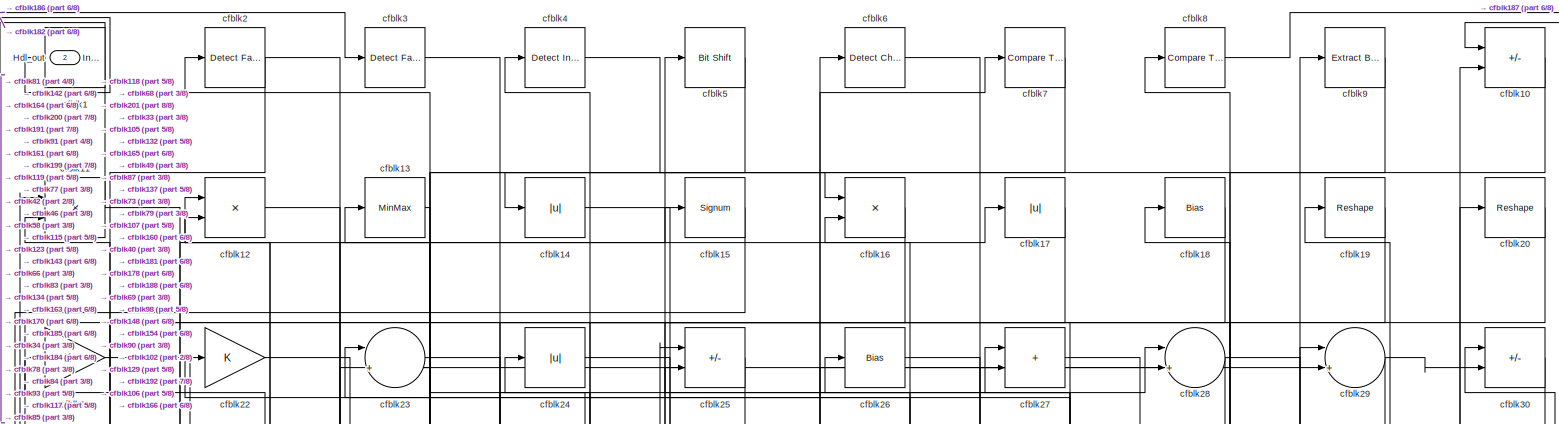
[diagram: root canvas - part 1/8, full width, top band]
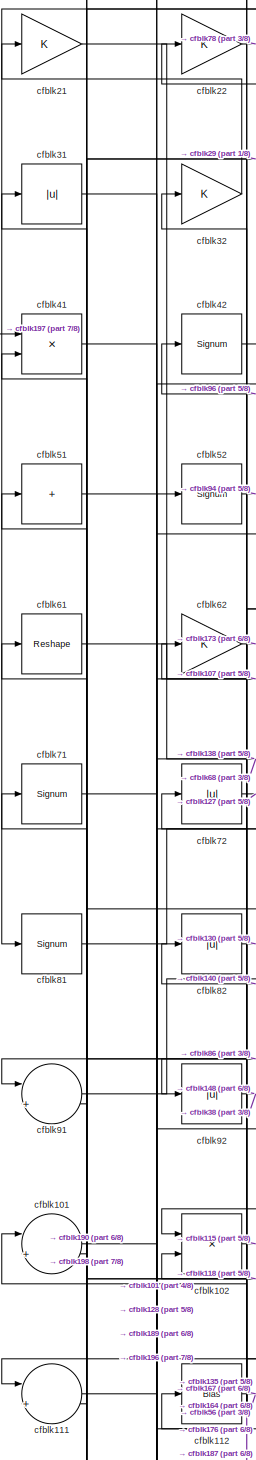
[diagram: root canvas - part 2/8, middle left region]
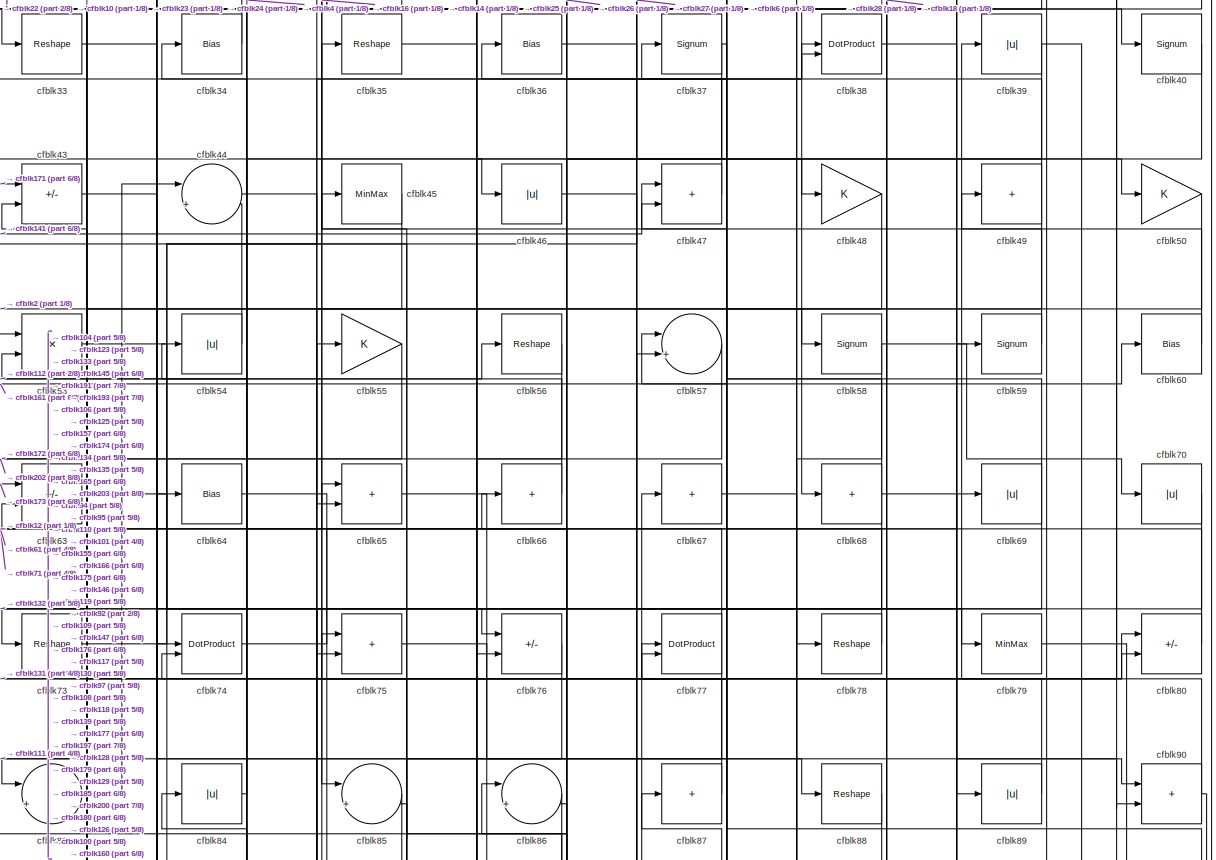
[diagram: root canvas - part 3/8, full width, top band]
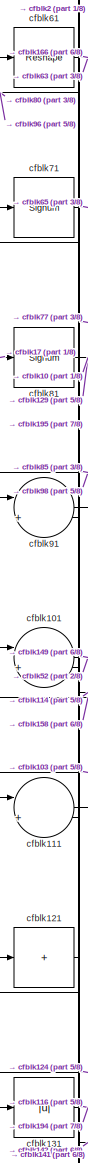
[diagram: root canvas - part 4/8, middle left region]
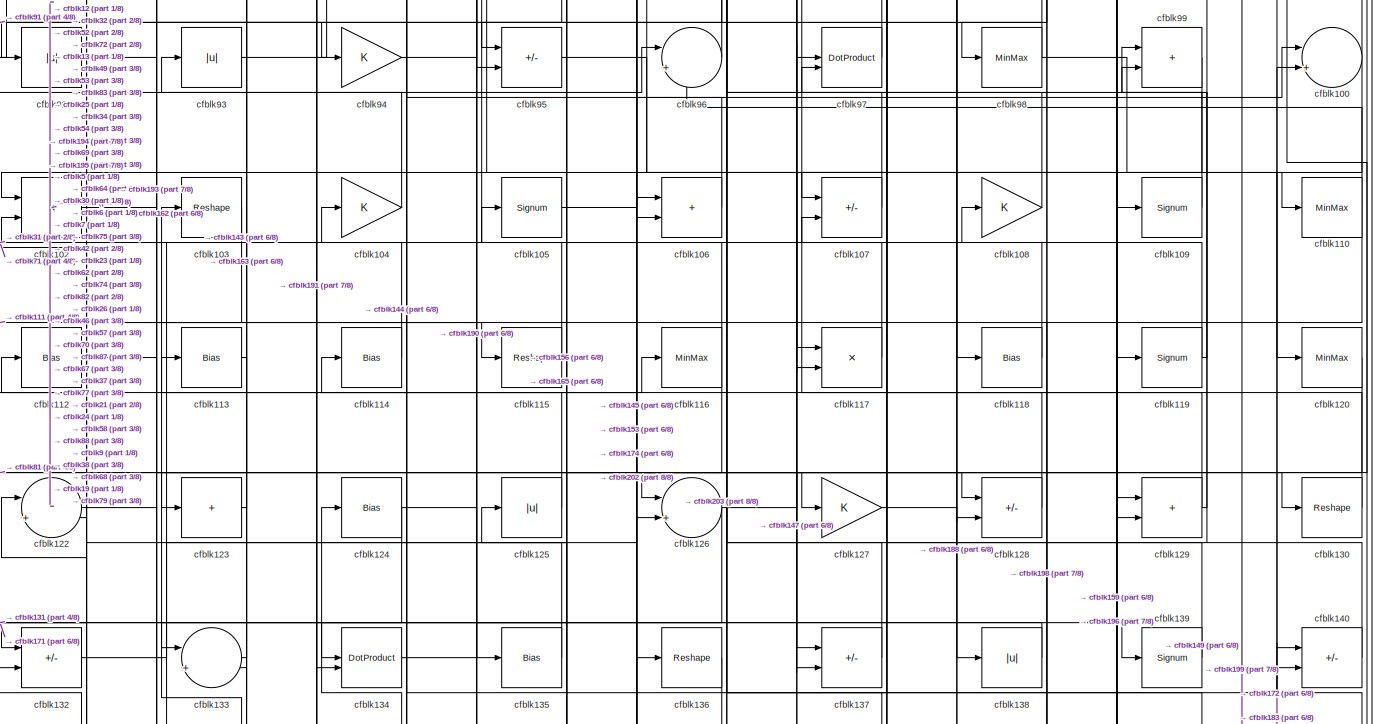
[diagram: root canvas - part 5/8, full width, middle band]
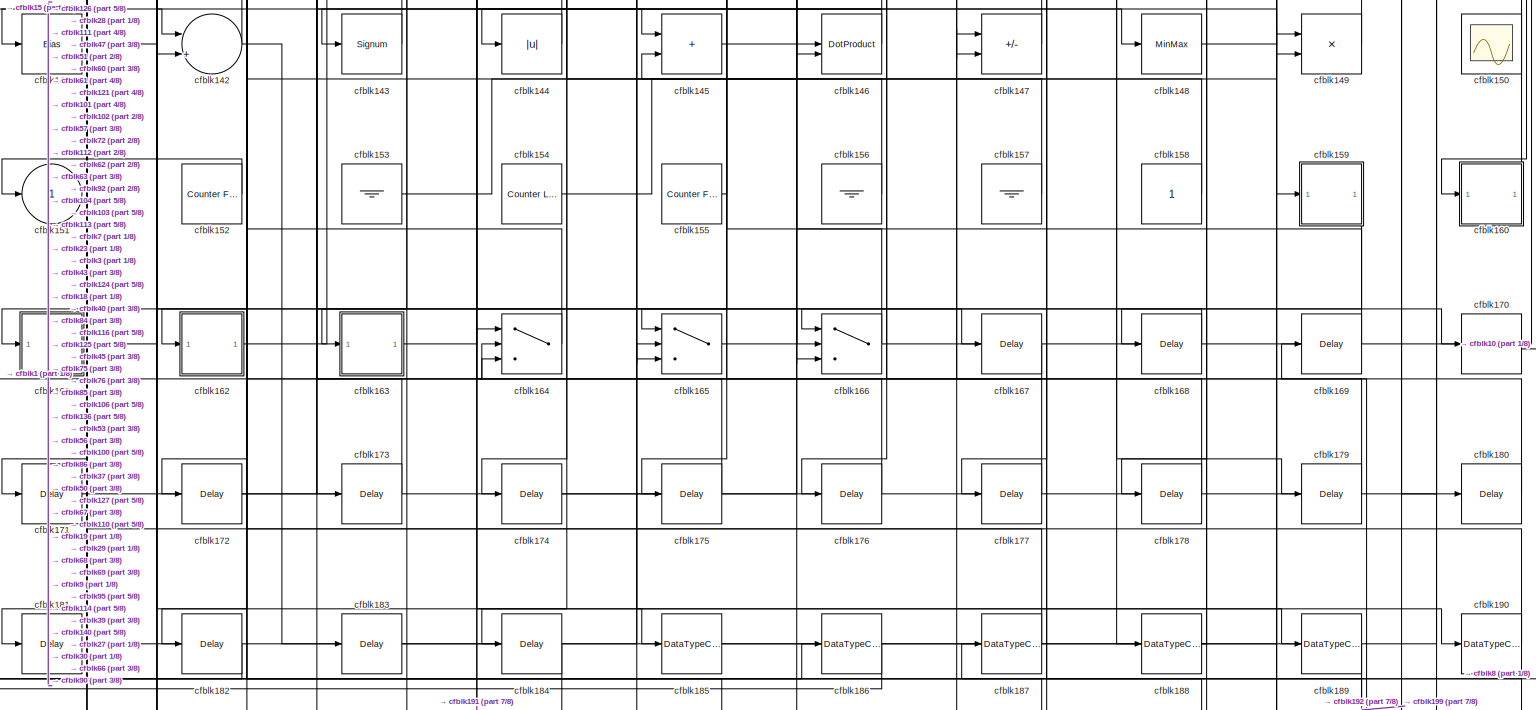
[diagram: root canvas - part 6/8, full width, bottom band]
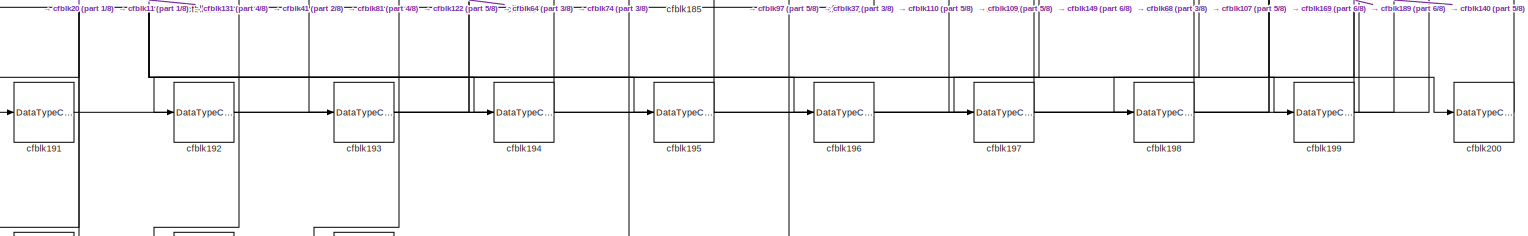
[diagram: root canvas - part 7/8, full width, bottom band]
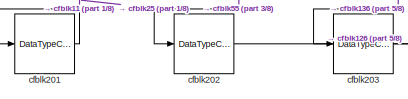
[diagram: root canvas - part 8/8, bottom left region]
MODEL slx_2e7a04397495
KIND model
CONFIG AbsTol = auto
CONFIG EnableMultiTasking = off
CONFIG FixedStep = auto
CONFIG MaxStep = auto
CONFIG MinStep = auto
CONFIG RelTol = 1e-3
CONFIG SampleTimeConstraint = Unconstrained
CONFIG SolverName = VariableStepAuto
CONFIG StartTime = 0.0
CONFIG StopTime = 10.0
BLOCK [Outport] Hdl_out
  OutDataTypeStr = uint8
  Port = 2
BLOCK [Reference] cfblk1  REF=simulink/Logic and Bit
Operations/Detect
Increase
  LibrarySourceBlock = hdlsllib/Logic and Bit\nOperations/Detect\nIncrease
  SourceBlock = simulink/Logic and Bit\nOperations/Detect\nIncrease
  SourceType = Detect Increase
BLOCK [Sum] cfblk10
  IconShape = rectangular
  Inputs = +-
  OutDataTypeStr = uint8
BLOCK [Sum] cfblk100
  Inputs = |++
  OutDataTypeStr = uint8
BLOCK [Sum] cfblk101
  Inputs = |++
  OutDataTypeStr = uint8
BLOCK [Product] cfblk102
  Inputs = */
  OutDataTypeStr = uint8
  RndMeth = Zero
  SaturateOnIntegerOverflow = on
BLOCK [Reshape] cfblk103
BLOCK [Gain] cfblk104
  OutDataTypeStr = uint8
BLOCK [Signum] cfblk105
BLOCK [Sum] cfblk106
  IconShape = rectangular
  OutDataTypeStr = uint8
BLOCK [Sum] cfblk107
  IconShape = rectangular
  Inputs = +-
  OutDataTypeStr = uint8
BLOCK [Gain] cfblk108
  OutDataTypeStr = uint8
BLOCK [Signum] cfblk109
BLOCK [Product] cfblk11
  Inputs = */
  OutDataTypeStr = uint8
  RndMeth = Zero
  SaturateOnIntegerOverflow = on
BLOCK [MinMax] cfblk110
  OutDataTypeStr = uint8
BLOCK [Sum] cfblk111
  Inputs = |++
  OutDataTypeStr = uint8
BLOCK [Bias] cfblk112
  Bias = 0.0
  SaturateOnIntegerOverflow = off
BLOCK [Bias] cfblk113
  Bias = 0.0
  SaturateOnIntegerOverflow = off
BLOCK [Bias] cfblk114
  Bias = 0.0
  SaturateOnIntegerOverflow = off
BLOCK [Reshape] cfblk115
BLOCK [MinMax] cfblk116
  OutDataTypeStr = uint8
BLOCK [Product] cfblk117
  Inputs = */
  OutDataTypeStr = uint8
  RndMeth = Zero
  SaturateOnIntegerOverflow = on
BLOCK [Bias] cfblk118
  Bias = 0.0
  SaturateOnIntegerOverflow = off
BLOCK [Signum] cfblk119
BLOCK [Product] cfblk12
  Inputs = */
  OutDataTypeStr = uint8
  RndMeth = Zero
  SaturateOnIntegerOverflow = on
BLOCK [MinMax] cfblk120
  OutDataTypeStr = uint8
BLOCK [Sum] cfblk121
  IconShape = rectangular
  Inputs = +
  OutDataTypeStr = uint8
BLOCK [Sum] cfblk122
  Inputs = |++
  OutDataTypeStr = uint8
BLOCK [Sum] cfblk123
  IconShape = rectangular
  Inputs = +
  OutDataTypeStr = uint8
BLOCK [Bias] cfblk124
  Bias = 0.0
  SaturateOnIntegerOverflow = off
BLOCK [Abs] cfblk125
  OutDataTypeStr = uint8
  SaturateOnIntegerOverflow = off
BLOCK [Sum] cfblk126
  Inputs = |++
  OutDataTypeStr = uint8
BLOCK [Gain] cfblk127
  OutDataTypeStr = uint8
BLOCK [Sum] cfblk128
  IconShape = rectangular
  Inputs = +-
  OutDataTypeStr = uint8
BLOCK [Sum] cfblk129
  IconShape = rectangular
  OutDataTypeStr = uint8
BLOCK [MinMax] cfblk13
  OutDataTypeStr = uint8
BLOCK [Reshape] cfblk130
BLOCK [Abs] cfblk131
  OutDataTypeStr = uint8
  SaturateOnIntegerOverflow = off
BLOCK [Sum] cfblk132
  IconShape = rectangular
  Inputs = +-
  OutDataTypeStr = uint8
BLOCK [Sum] cfblk133
  Inputs = |++
  OutDataTypeStr = uint8
BLOCK [DotProduct] cfblk134
  OutDataTypeStr = uint8
BLOCK [Bias] cfblk135
  Bias = 0.0
  SaturateOnIntegerOverflow = off
BLOCK [Reshape] cfblk136
BLOCK [Sum] cfblk137
  IconShape = rectangular
  Inputs = +-
  OutDataTypeStr = uint8
BLOCK [Abs] cfblk138
  OutDataTypeStr = uint8
  SaturateOnIntegerOverflow = off
BLOCK [Signum] cfblk139
BLOCK [Abs] cfblk14
  OutDataTypeStr = uint8
  SaturateOnIntegerOverflow = off
BLOCK [Sum] cfblk140
  IconShape = rectangular
  Inputs = +-
  OutDataTypeStr = uint8
BLOCK [Bias] cfblk141
  Bias = 0.0
  SaturateOnIntegerOverflow = off
BLOCK [Sum] cfblk142
  Inputs = |++
  OutDataTypeStr = uint8
BLOCK [Signum] cfblk143
BLOCK [Abs] cfblk144
  OutDataTypeStr = uint8
  SaturateOnIntegerOverflow = off
BLOCK [Sum] cfblk145
  IconShape = rectangular
  OutDataTypeStr = uint8
BLOCK [DotProduct] cfblk146
  OutDataTypeStr = uint8
BLOCK [Sum] cfblk147
  IconShape = rectangular
  Inputs = +-
  OutDataTypeStr = uint8
BLOCK [MinMax] cfblk148
  OutDataTypeStr = uint8
BLOCK [Product] cfblk149
  Inputs = */
  OutDataTypeStr = uint8
  RndMeth = Zero
  SaturateOnIntegerOverflow = on
BLOCK [Signum] cfblk15
BLOCK [Scope] cfblk150
  Floating = on
  NumInputPorts = 1
  ScopeSpecificationString = Simulink.scopes.TimeScopeBlockCfg('CurrentConfiguration', extmgr.ConfigurationSet(extmgr.Configuration('Core','General UI',true,'FigureColor',[0.156862745098039 0.156862745098039 0.156862745098039]),extmgr.Configuration('Core','Source UI',true),extmgr.Configuration('Sources','WiredSimulink',true,'DataLoggingVariableName','ScopeData1','DataLoggingSaveFormat','StructureWithTime','DataLoggingLimitDat...<+2713ch>
BLOCK [Outport] cfblk151
  OutDataTypeStr = uint8
  VectorParamsAs1DForOutWhenUnconnected = off
BLOCK [Reference] cfblk152  REF=hdlsllib/Sources/Counter
Free-Running
  SourceBlock = hdlsllib/Sources/Counter\nFree-Running
  SourceType = Counter Free-Running
BLOCK [Ground] cfblk153
BLOCK [Reference] cfblk154  REF=hdlsllib/Sources/Counter
Limited
  SourceBlock = hdlsllib/Sources/Counter\nLimited
  SourceType = Counter Limited
BLOCK [Reference] cfblk155  REF=hdlsllib/Sources/Counter
Free-Running
  SourceBlock = hdlsllib/Sources/Counter\nFree-Running
  SourceType = Counter Free-Running
BLOCK [Ground] cfblk156
BLOCK [Ground] cfblk157
BLOCK [Constant] cfblk158
  OutDataTypeStr = uint8
  SampleTime = -1
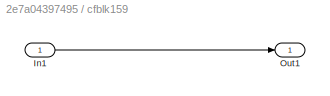
BLOCK [SubSystem] cfblk159
  LibrarySourceBlock = hdlsllib/Ports &\nSubsystems/Subsystem
BLOCK [Inport] cfblk159/In1
BLOCK [Outport] cfblk159/Out1
BLOCK [Product] cfblk16
  Inputs = */
  OutDataTypeStr = uint8
  RndMeth = Zero
  SaturateOnIntegerOverflow = on
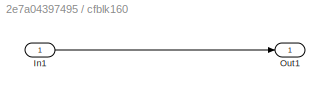
BLOCK [SubSystem] cfblk160
  LibrarySourceBlock = hdlsllib/Ports &\nSubsystems/Subsystem
BLOCK [Inport] cfblk160/In1
BLOCK [Outport] cfblk160/Out1
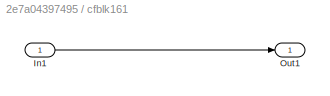
BLOCK [SubSystem] cfblk161
  LibrarySourceBlock = hdlsllib/Ports &\nSubsystems/Subsystem
BLOCK [Inport] cfblk161/In1
BLOCK [Outport] cfblk161/Out1
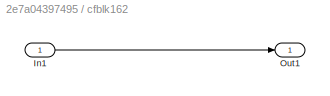
BLOCK [SubSystem] cfblk162
  LibrarySourceBlock = hdlsllib/Ports &\nSubsystems/Subsystem
BLOCK [Inport] cfblk162/In1
BLOCK [Outport] cfblk162/Out1
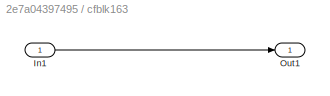
BLOCK [SubSystem] cfblk163
  LibrarySourceBlock = hdlsllib/Ports &\nSubsystems/Subsystem
BLOCK [Inport] cfblk163/In1
BLOCK [Outport] cfblk163/Out1
BLOCK [Switch] cfblk164
  InputSameDT = off
  OutDataTypeStr = uint8
  SaturateOnIntegerOverflow = off
BLOCK [Switch] cfblk165
  InputSameDT = off
  OutDataTypeStr = uint8
  SaturateOnIntegerOverflow = off
BLOCK [Switch] cfblk166
  InputSameDT = off
  OutDataTypeStr = uint8
  SaturateOnIntegerOverflow = off
BLOCK [Delay] cfblk167
  InputPortMap = u0
  SampleTime = 1
BLOCK [Delay] cfblk168
  InputPortMap = u0
  SampleTime = 1
BLOCK [Delay] cfblk169
  InputPortMap = u0
  SampleTime = 1
BLOCK [Abs] cfblk17
  OutDataTypeStr = uint8
  SaturateOnIntegerOverflow = off
BLOCK [Delay] cfblk170
  InputPortMap = u0
  SampleTime = 1
BLOCK [Delay] cfblk171
  InputPortMap = u0
  SampleTime = 1
BLOCK [Delay] cfblk172
  InputPortMap = u0
  SampleTime = 1
BLOCK [Delay] cfblk173
  InputPortMap = u0
  SampleTime = 1
BLOCK [Delay] cfblk174
  InputPortMap = u0
  SampleTime = 1
BLOCK [Delay] cfblk175
  InputPortMap = u0
  SampleTime = 1
BLOCK [Delay] cfblk176
  InputPortMap = u0
  SampleTime = 1
BLOCK [Delay] cfblk177
  InputPortMap = u0
  SampleTime = 1
BLOCK [Delay] cfblk178
  InputPortMap = u0
  SampleTime = 1
BLOCK [Delay] cfblk179
  InputPortMap = u0
  SampleTime = 1
BLOCK [Bias] cfblk18
  Bias = 0.0
  SaturateOnIntegerOverflow = off
BLOCK [Delay] cfblk180
  InputPortMap = u0
  SampleTime = 1
BLOCK [Delay] cfblk181
  InputPortMap = u0
  SampleTime = 1
BLOCK [Delay] cfblk182
  InputPortMap = u0
  SampleTime = 1
BLOCK [Delay] cfblk183
  InputPortMap = u0
  SampleTime = 1
BLOCK [Delay] cfblk184
  InputPortMap = u0
  SampleTime = 1
BLOCK [DataTypeConversion] cfblk185
  OutDataTypeStr = uint8
  RndMeth = Floor
  SaturateOnIntegerOverflow = off
BLOCK [DataTypeConversion] cfblk186
  OutDataTypeStr = uint8
  RndMeth = Floor
  SaturateOnIntegerOverflow = off
BLOCK [DataTypeConversion] cfblk187
  OutDataTypeStr = uint8
  RndMeth = Floor
  SaturateOnIntegerOverflow = off
BLOCK [DataTypeConversion] cfblk188
  OutDataTypeStr = uint8
  RndMeth = Floor
  SaturateOnIntegerOverflow = off
BLOCK [DataTypeConversion] cfblk189
  OutDataTypeStr = uint8
  RndMeth = Floor
  SaturateOnIntegerOverflow = off
BLOCK [Reshape] cfblk19
BLOCK [DataTypeConversion] cfblk190
  OutDataTypeStr = uint8
  RndMeth = Floor
  SaturateOnIntegerOverflow = off
BLOCK [DataTypeConversion] cfblk191
  OutDataTypeStr = uint8
  RndMeth = Floor
  SaturateOnIntegerOverflow = off
BLOCK [DataTypeConversion] cfblk192
  OutDataTypeStr = uint8
  RndMeth = Floor
  SaturateOnIntegerOverflow = off
BLOCK [DataTypeConversion] cfblk193
  OutDataTypeStr = uint8
  RndMeth = Floor
  SaturateOnIntegerOverflow = off
BLOCK [DataTypeConversion] cfblk194
  OutDataTypeStr = uint8
  RndMeth = Floor
  SaturateOnIntegerOverflow = off
BLOCK [DataTypeConversion] cfblk195
  OutDataTypeStr = uint8
  RndMeth = Floor
  SaturateOnIntegerOverflow = off
BLOCK [DataTypeConversion] cfblk196
  OutDataTypeStr = uint8
  RndMeth = Floor
  SaturateOnIntegerOverflow = off
BLOCK [DataTypeConversion] cfblk197
  OutDataTypeStr = uint8
  RndMeth = Floor
  SaturateOnIntegerOverflow = off
BLOCK [DataTypeConversion] cfblk198
  OutDataTypeStr = uint8
  RndMeth = Floor
  SaturateOnIntegerOverflow = off
BLOCK [DataTypeConversion] cfblk199
  OutDataTypeStr = uint8
  RndMeth = Floor
  SaturateOnIntegerOverflow = off
BLOCK [Reference] cfblk2  REF=hdlsllib/Logic and Bit
Operations/Detect Fall
Negative
  SourceBlock = hdlsllib/Logic and Bit\nOperations/Detect Fall\nNegative
  SourceType = Detect Fall Negative
BLOCK [Reshape] cfblk20
BLOCK [DataTypeConversion] cfblk200
  OutDataTypeStr = uint8
  RndMeth = Floor
  SaturateOnIntegerOverflow = off
BLOCK [DataTypeConversion] cfblk201
  OutDataTypeStr = uint8
  RndMeth = Floor
  SaturateOnIntegerOverflow = off
BLOCK [DataTypeConversion] cfblk202
  OutDataTypeStr = uint8
  RndMeth = Floor
  SaturateOnIntegerOverflow = off
BLOCK [DataTypeConversion] cfblk203
  OutDataTypeStr = uint8
  RndMeth = Floor
  SaturateOnIntegerOverflow = off
BLOCK [Gain] cfblk21
  OutDataTypeStr = uint8
BLOCK [Gain] cfblk22
  OutDataTypeStr = uint8
BLOCK [Sum] cfblk23
  Inputs = |++
  OutDataTypeStr = uint8
BLOCK [Abs] cfblk24
  OutDataTypeStr = uint8
  SaturateOnIntegerOverflow = off
BLOCK [Sum] cfblk25
  IconShape = rectangular
  Inputs = +-
  OutDataTypeStr = uint8
BLOCK [Bias] cfblk26
  Bias = 0.0
  SaturateOnIntegerOverflow = off
BLOCK [Sum] cfblk27
  IconShape = rectangular
  OutDataTypeStr = uint8
BLOCK [Sum] cfblk28
  Inputs = |++
  OutDataTypeStr = uint8
BLOCK [Sum] cfblk29
  Inputs = |++
  OutDataTypeStr = uint8
BLOCK [Reference] cfblk3  REF=hdlsllib/Logic and Bit
Operations/Detect Fall
Nonpositive
  SourceBlock = hdlsllib/Logic and Bit\nOperations/Detect Fall\nNonpositive
  SourceType = Detect Fall Nonpositive
BLOCK [Sum] cfblk30
  IconShape = rectangular
  Inputs = +-
  OutDataTypeStr = uint8
BLOCK [Abs] cfblk31
  OutDataTypeStr = uint8
  SaturateOnIntegerOverflow = off
BLOCK [Gain] cfblk32
  OutDataTypeStr = uint8
BLOCK [Reshape] cfblk33
BLOCK [Bias] cfblk34
  Bias = 0.0
  SaturateOnIntegerOverflow = off
BLOCK [Reshape] cfblk35
BLOCK [Bias] cfblk36
  Bias = 0.0
  SaturateOnIntegerOverflow = off
BLOCK [Signum] cfblk37
BLOCK [DotProduct] cfblk38
  OutDataTypeStr = uint8
BLOCK [Abs] cfblk39
  OutDataTypeStr = uint8
  SaturateOnIntegerOverflow = off
BLOCK [Reference] cfblk4  REF=simulink/Logic and Bit
Operations/Detect
Increase
  LibrarySourceBlock = hdlsllib/Logic and Bit\nOperations/Detect\nIncrease
  SourceBlock = simulink/Logic and Bit\nOperations/Detect\nIncrease
  SourceType = Detect Increase
BLOCK [Signum] cfblk40
BLOCK [Product] cfblk41
  Inputs = */
  OutDataTypeStr = uint8
  RndMeth = Zero
  SaturateOnIntegerOverflow = on
BLOCK [Signum] cfblk42
BLOCK [Sum] cfblk43
  IconShape = rectangular
  Inputs = +-
  OutDataTypeStr = uint8
BLOCK [Sum] cfblk44
  Inputs = |++
  OutDataTypeStr = uint8
BLOCK [MinMax] cfblk45
  OutDataTypeStr = uint8
BLOCK [Abs] cfblk46
  OutDataTypeStr = uint8
  SaturateOnIntegerOverflow = off
BLOCK [Sum] cfblk47
  IconShape = rectangular
  OutDataTypeStr = uint8
BLOCK [Gain] cfblk48
  OutDataTypeStr = uint8
BLOCK [Sum] cfblk49
  IconShape = rectangular
  Inputs = +
  OutDataTypeStr = uint8
BLOCK [Reference] cfblk5  REF=hdlsllib/Logic and Bit
Operations/Bit Shift
  SourceBlock = hdlsllib/Logic and Bit\nOperations/Bit Shift
  SourceType = Bit Shift
BLOCK [Gain] cfblk50
  OutDataTypeStr = uint8
BLOCK [Sum] cfblk51
  IconShape = rectangular
  Inputs = +
  OutDataTypeStr = uint8
BLOCK [Signum] cfblk52
BLOCK [Product] cfblk53
  Inputs = */
  OutDataTypeStr = uint8
  RndMeth = Zero
  SaturateOnIntegerOverflow = on
BLOCK [Abs] cfblk54
  OutDataTypeStr = uint8
  SaturateOnIntegerOverflow = off
BLOCK [Gain] cfblk55
  OutDataTypeStr = uint8
BLOCK [Reshape] cfblk56
BLOCK [Sum] cfblk57
  Inputs = |++
  OutDataTypeStr = uint8
BLOCK [Signum] cfblk58
BLOCK [Signum] cfblk59
BLOCK [Reference] cfblk6  REF=simulink/Logic and Bit
Operations/Detect
Change
  LibrarySourceBlock = hdlsllib/Logic and Bit\nOperations/Detect\nChange
  SourceBlock = simulink/Logic and Bit\nOperations/Detect\nChange
  SourceType = Detect Change
BLOCK [Bias] cfblk60
  Bias = 0.0
  SaturateOnIntegerOverflow = off
BLOCK [Reshape] cfblk61
BLOCK [Gain] cfblk62
  OutDataTypeStr = uint8
BLOCK [Sum] cfblk63
  IconShape = rectangular
  Inputs = +-
  OutDataTypeStr = uint8
BLOCK [Bias] cfblk64
  Bias = 0.0
  SaturateOnIntegerOverflow = off
BLOCK [Sum] cfblk65
  IconShape = rectangular
  OutDataTypeStr = uint8
BLOCK [Sum] cfblk66
  IconShape = rectangular
  Inputs = +
  OutDataTypeStr = uint8
BLOCK [Sum] cfblk67
  IconShape = rectangular
  Inputs = +
  OutDataTypeStr = uint8
BLOCK [Sum] cfblk68
  IconShape = rectangular
  Inputs = +
  OutDataTypeStr = uint8
BLOCK [Abs] cfblk69
  OutDataTypeStr = uint8
  SaturateOnIntegerOverflow = off
BLOCK [Reference] cfblk7  REF=hdlsllib/Logic and Bit
Operations/Compare
To Constant
  SourceBlock = hdlsllib/Logic and Bit\nOperations/Compare\nTo Constant
  SourceType = Compare To Constant
BLOCK [Abs] cfblk70
  OutDataTypeStr = uint8
  SaturateOnIntegerOverflow = off
BLOCK [Signum] cfblk71
BLOCK [Abs] cfblk72
  OutDataTypeStr = uint8
  SaturateOnIntegerOverflow = off
BLOCK [Reshape] cfblk73
BLOCK [DotProduct] cfblk74
  OutDataTypeStr = uint8
BLOCK [Sum] cfblk75
  IconShape = rectangular
  OutDataTypeStr = uint8
BLOCK [Sum] cfblk76
  IconShape = rectangular
  Inputs = +-
  OutDataTypeStr = uint8
BLOCK [DotProduct] cfblk77
  OutDataTypeStr = uint8
BLOCK [Reshape] cfblk78
BLOCK [MinMax] cfblk79
  OutDataTypeStr = uint8
BLOCK [Reference] cfblk8  REF=hdlsllib/Logic and Bit
Operations/Compare
To Zero
  SourceBlock = hdlsllib/Logic and Bit\nOperations/Compare\nTo Zero
  SourceType = Compare To Zero
BLOCK [Sum] cfblk80
  IconShape = rectangular
  Inputs = +-
  OutDataTypeStr = uint8
BLOCK [Signum] cfblk81
BLOCK [Abs] cfblk82
  OutDataTypeStr = uint8
  SaturateOnIntegerOverflow = off
BLOCK [Sum] cfblk83
  Inputs = |++
  OutDataTypeStr = uint8
BLOCK [Abs] cfblk84
  OutDataTypeStr = uint8
  SaturateOnIntegerOverflow = off
BLOCK [Sum] cfblk85
  Inputs = |++
  OutDataTypeStr = uint8
BLOCK [Sum] cfblk86
  Inputs = |++
  OutDataTypeStr = uint8
BLOCK [Sum] cfblk87
  IconShape = rectangular
  Inputs = +
  OutDataTypeStr = uint8
BLOCK [Reshape] cfblk88
BLOCK [Abs] cfblk89
  OutDataTypeStr = uint8
  SaturateOnIntegerOverflow = off
BLOCK [Reference] cfblk9  REF=simulink/Logic and Bit
Operations/Extract Bits
  LibrarySourceBlock = hdlsllib/Logic and Bit\nOperations/Extract Bits
  SourceBlock = simulink/Logic and Bit\nOperations/Extract Bits
  SourceType = Extract Bits
BLOCK [Sum] cfblk90
  IconShape = rectangular
  OutDataTypeStr = uint8
BLOCK [Sum] cfblk91
  Inputs = |++
  OutDataTypeStr = uint8
BLOCK [Abs] cfblk92
  OutDataTypeStr = uint8
  SaturateOnIntegerOverflow = off
BLOCK [Abs] cfblk93
  OutDataTypeStr = uint8
  SaturateOnIntegerOverflow = off
BLOCK [Gain] cfblk94
  OutDataTypeStr = uint8
BLOCK [Sum] cfblk95
  IconShape = rectangular
  Inputs = +-
  OutDataTypeStr = uint8
BLOCK [Sum] cfblk96
  Inputs = |++
  OutDataTypeStr = uint8
BLOCK [DotProduct] cfblk97
  OutDataTypeStr = uint8
BLOCK [MinMax] cfblk98
  OutDataTypeStr = uint8
BLOCK [Sum] cfblk99
  IconShape = rectangular
  OutDataTypeStr = uint8
NET cfblk100:1 -> cfblk147:2, cfblk57:1
NET cfblk101:1 -> cfblk149:2, cfblk52:1
LINE cfblk102:1 -> cfblk115:1
LINE cfblk103:1 -> cfblk111:1
LINE cfblk104:1 -> cfblk83:2
LINE cfblk105:1 -> cfblk7:1
LINE cfblk106:1 -> cfblk34:1
LINE cfblk107:1 -> cfblk62:1
LINE cfblk108:1 -> cfblk77:1
LINE cfblk109:1 -> cfblk74:2
LINE cfblk10:1 -> cfblk83:1
NET cfblk110:1 -> cfblk162:1, cfblk198:1, cfblk96:2
LINE cfblk111:1 -> cfblk142:2
NET cfblk112:1 -> cfblk167:1, cfblk56:1
LINE cfblk113:1 -> cfblk163:1
LINE cfblk114:1 -> cfblk71:1
LINE cfblk115:1 -> cfblk13:1
NET cfblk116:1 -> cfblk105:1, cfblk165:1
LINE cfblk117:1 -> cfblk5:1
NET cfblk118:1 -> cfblk31:1, cfblk77:2
NET cfblk119:1 -> cfblk108:1, cfblk12:1, cfblk99:1
NET cfblk11:1 -> Hdl_out:1, cfblk199:1
LINE cfblk120:1 -> cfblk137:2
LINE cfblk121:1 -> cfblk141:1
LINE cfblk122:1 -> cfblk193:1
LINE cfblk123:1 -> cfblk53:2
NET cfblk124:1 -> cfblk131:1, cfblk190:1
LINE cfblk125:1 -> cfblk54:1
NET cfblk126:1 -> cfblk171:1, cfblk57:2
LINE cfblk127:1 -> cfblk188:1
LINE cfblk128:1 -> cfblk113:1
NET cfblk129:1 -> cfblk19:1, cfblk97:2
LINE cfblk12:1 -> cfblk46:1
LINE cfblk130:1 -> cfblk87:1
NET cfblk131:1 -> cfblk116:1, cfblk194:1, cfblk61:1, cfblk80:2, cfblk96:1
LINE cfblk132:1 -> cfblk6:1
LINE cfblk133:1 -> cfblk93:1
NET cfblk134:1 -> cfblk139:1, cfblk80:1
NET cfblk135:1 -> cfblk134:1, cfblk32:1
LINE cfblk136:1 -> cfblk203:1
LINE cfblk137:1 -> cfblk23:1
LINE cfblk138:1 -> cfblk133:1
LINE cfblk139:1 -> cfblk37:1
LINE cfblk13:1 -> cfblk123:1
NET cfblk140:1 -> cfblk82:1, cfblk99:2
LINE cfblk141:1 -> cfblk47:1
NET cfblk142:1 -> cfblk121:1, cfblk182:1, cfblk183:1
LINE cfblk143:1 -> cfblk103:1
LINE cfblk144:1 -> cfblk124:1
LINE cfblk145:1 -> cfblk100:1
LINE cfblk146:1 -> cfblk144:1
LINE cfblk147:1 -> cfblk86:1
LINE cfblk148:1 -> cfblk29:1
LINE cfblk149:1 -> cfblk114:1
LINE cfblk14:1 -> cfblk68:1
LINE cfblk152:1 -> cfblk151:1
LINE cfblk153:1 -> cfblk136:1
LINE cfblk154:1 -> cfblk9:1
NET cfblk155:1 -> cfblk45:1, cfblk85:2
LINE cfblk156:1 -> cfblk125:1
LINE cfblk157:1 -> cfblk84:1
LINE cfblk158:1 -> cfblk101:1
LINE cfblk159/In1:1 -> cfblk159/Out1:1
LINE cfblk159:1 -> cfblk168:1
LINE cfblk15:1 -> cfblk142:1
LINE cfblk160/In1:1 -> cfblk160/Out1:1
NET cfblk160:1 -> cfblk27:1, cfblk66:1
LINE cfblk161/In1:1 -> cfblk161/Out1:1
NET cfblk161:1 -> cfblk15:1, cfblk60:1
LINE cfblk162/In1:1 -> cfblk162/Out1:1
LINE cfblk162:1 -> cfblk104:1
LINE cfblk163/In1:1 -> cfblk163/Out1:1
LINE cfblk163:1 -> cfblk28:1
NET cfblk164:1 -> cfblk161:1, cfblk72:1
LINE cfblk165:1 -> cfblk28:2
NET cfblk166:1 -> cfblk30:1, cfblk75:1
LINE cfblk167:1 -> cfblk164:3
LINE cfblk168:1 -> cfblk166:1
LINE cfblk169:1 -> cfblk146:1
LINE cfblk16:1 -> cfblk85:1
LINE cfblk170:1 -> cfblk10:1
LINE cfblk171:1 -> cfblk43:1
LINE cfblk172:1 -> cfblk140:1
LINE cfblk173:1 -> cfblk63:1
LINE cfblk174:1 -> cfblk106:1
LINE cfblk175:1 -> cfblk164:1
LINE cfblk176:1 -> cfblk102:2
LINE cfblk177:1 -> cfblk53:1
LINE cfblk178:1 -> cfblk145:2
LINE cfblk179:1 -> cfblk147:1
LINE cfblk17:1 -> cfblk81:1
LINE cfblk180:1 -> cfblk86:2
LINE cfblk181:1 -> cfblk165:2
LINE cfblk182:1 -> cfblk1:1
LINE cfblk183:1 -> cfblk100:2
LINE cfblk184:1 -> cfblk186:1
LINE cfblk185:1 -> cfblk69:1
LINE cfblk186:1 -> cfblk3:1
LINE cfblk187:1 -> cfblk112:1
LINE cfblk188:1 -> cfblk8:1
LINE cfblk189:1 -> cfblk192:1
LINE cfblk18:1 -> cfblk184:1
LINE cfblk190:1 -> cfblk51:1
NET cfblk191:1 -> cfblk149:1, cfblk64:1, cfblk97:1
LINE cfblk192:1 -> cfblk20:1
LINE cfblk193:1 -> cfblk74:1
LINE cfblk194:1 -> cfblk122:1
LINE cfblk195:1 -> cfblk122:2
LINE cfblk196:1 -> cfblk109:1
LINE cfblk197:1 -> cfblk41:1
LINE cfblk198:1 -> cfblk41:2
NET cfblk199:1 -> cfblk107:2, cfblk140:2, cfblk169:1
NET cfblk19:1 -> cfblk107:1, cfblk134:2, cfblk178:1
LINE cfblk1:1 -> cfblk164:2
LINE cfblk200:1 -> cfblk11:1
LINE cfblk201:1 -> cfblk11:2
LINE cfblk202:1 -> cfblk126:2
LINE cfblk203:1 -> cfblk55:1
LINE cfblk20:1 -> cfblk191:1
LINE cfblk21:1 -> cfblk138:1
LINE cfblk22:1 -> cfblk78:1
LINE cfblk23:1 -> cfblk170:1
LINE cfblk24:1 -> cfblk118:1
NET cfblk25:1 -> cfblk201:1, cfblk33:1
LINE cfblk26:1 -> cfblk137:1
LINE cfblk27:1 -> cfblk40:1
NET cfblk28:1 -> cfblk181:1, cfblk90:1
NET cfblk29:1 -> cfblk102:1, cfblk30:2
NET cfblk2:1 -> cfblk58:1, cfblk91:2
LINE cfblk30:1 -> cfblk106:2
LINE cfblk31:1 -> cfblk128:1
LINE cfblk32:1 -> cfblk21:1
LINE cfblk33:1 -> cfblk88:1
LINE cfblk34:1 -> cfblk2:1
LINE cfblk35:1 -> cfblk50:1
LINE cfblk36:1 -> cfblk48:1
NET cfblk37:1 -> cfblk176:1, cfblk197:1
LINE cfblk38:1 -> cfblk129:1
NET cfblk39:1 -> cfblk180:1, cfblk76:1
LINE cfblk3:1 -> cfblk185:1
NET cfblk40:1 -> cfblk174:1, cfblk76:2
LINE cfblk41:1 -> cfblk196:1
LINE cfblk42:1 -> cfblk29:2
NET cfblk43:1 -> cfblk145:1, cfblk75:2
LINE cfblk44:1 -> cfblk135:1
LINE cfblk45:1 -> cfblk65:2
LINE cfblk46:1 -> cfblk117:1
LINE cfblk47:1 -> cfblk36:1
LINE cfblk48:1 -> cfblk73:1
NET cfblk49:1 -> cfblk133:2, cfblk16:2
LINE cfblk4:1 -> cfblk16:1
LINE cfblk50:1 -> cfblk177:1
LINE cfblk51:1 -> cfblk189:1
LINE cfblk52:1 -> cfblk94:1
LINE cfblk53:1 -> cfblk166:2
LINE cfblk54:1 -> cfblk44:2
LINE cfblk55:1 -> cfblk202:1
LINE cfblk56:1 -> cfblk146:2
LINE cfblk57:1 -> cfblk172:1
NET cfblk58:1 -> cfblk128:2, cfblk70:1
LINE cfblk59:1 -> cfblk35:1
LINE cfblk5:1 -> cfblk14:1
LINE cfblk60:1 -> cfblk49:1
NET cfblk61:1 -> cfblk166:3, cfblk63:2
LINE cfblk62:1 -> cfblk173:1
LINE cfblk63:1 -> cfblk89:1
LINE cfblk64:1 -> cfblk110:1
LINE cfblk65:1 -> cfblk90:2
LINE cfblk66:1 -> cfblk23:2
LINE cfblk67:1 -> cfblk179:1
NET cfblk68:1 -> cfblk132:2, cfblk165:3, cfblk200:1, cfblk22:1
NET cfblk69:1 -> cfblk18:1, cfblk25:2, cfblk95:2
LINE cfblk6:1 -> cfblk79:1
LINE cfblk70:1 -> cfblk117:2
LINE cfblk71:1 -> cfblk65:1
LINE cfblk72:1 -> cfblk127:1
LINE cfblk73:1 -> cfblk27:2
LINE cfblk74:1 -> cfblk59:1
LINE cfblk75:1 -> cfblk119:1
LINE cfblk76:1 -> cfblk175:1
NET cfblk77:1 -> cfblk111:2, cfblk12:2
LINE cfblk78:1 -> cfblk4:1
LINE cfblk79:1 -> cfblk126:1
LINE cfblk7:1 -> cfblk143:1
LINE cfblk80:1 -> cfblk47:2
NET cfblk81:1 -> cfblk10:2, cfblk129:2, cfblk195:1
LINE cfblk82:1 -> cfblk130:1
LINE cfblk83:1 -> cfblk44:1
LINE cfblk84:1 -> cfblk24:1
LINE cfblk85:1 -> cfblk101:2
LINE cfblk86:1 -> cfblk92:1
LINE cfblk87:1 -> cfblk26:1
LINE cfblk88:1 -> cfblk95:1
LINE cfblk89:1 -> cfblk43:2
LINE cfblk8:1 -> cfblk187:1
NET cfblk90:1 -> cfblk160:1, cfblk39:1
LINE cfblk91:1 -> cfblk17:1
NET cfblk92:1 -> cfblk148:1, cfblk38:2
LINE cfblk93:1 -> cfblk25:1
LINE cfblk94:1 -> cfblk38:1
LINE cfblk95:1 -> cfblk159:1
LINE cfblk96:1 -> cfblk42:1
LINE cfblk97:1 -> cfblk67:1
NET cfblk98:1 -> cfblk120:1, cfblk91:1
LINE cfblk99:1 -> cfblk132:1
LINE cfblk9:1 -> cfblk98:1
note: NET lines group one-source signal fan-out (src -> all destinations, sorted); 1:1 wires keep LINE
